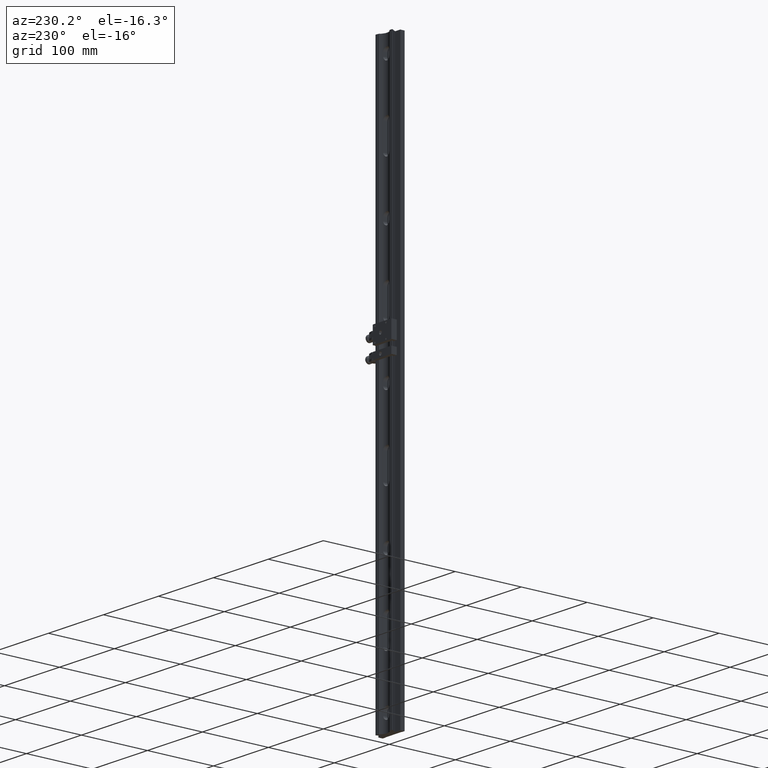
[diagram: clean part render]
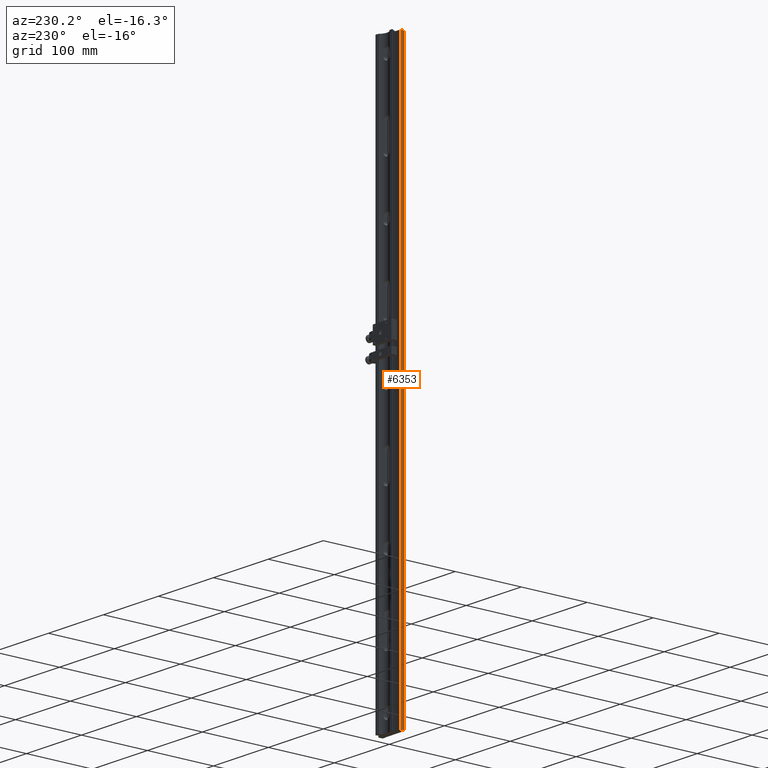
[diagram: same view with one face highlighted and labeled with its STEP entity id]
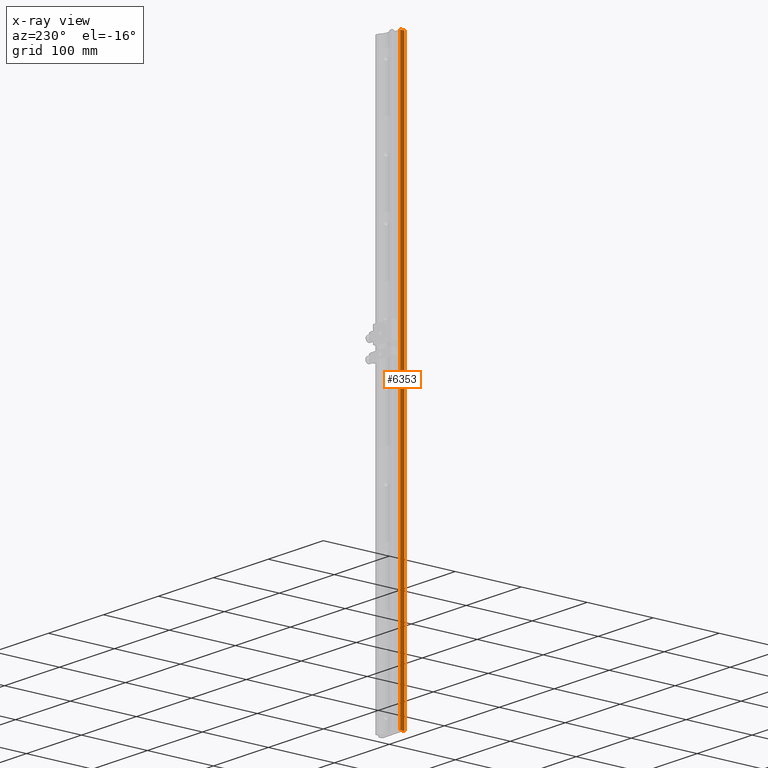
[diagram: x-ray of the same camera — body ghosted, the highlighted face saturated]
A machine part, auxiliary view. The second image highlights one B-rep face of the part: STEP entity #6353.
The next image is the same camera in x-ray: the body ghosted, the highlighted face saturated — about 0% of this face is hidden behind the body in this view.
In plain terms, the highlighted planar face has unit normal (1, 0, 0).
Its self-contained STEP definition (entity closure, byte-faithful):
#33 = CARTESIAN_POINT ( 'NONE',  ( -20.00000000000000000, 425.0000000000000000, 0.000000000000000000 ) ) ;
#38 = DIRECTION ( 'NONE',  ( -5.337610695313253357E-16, 0.000000000000000000, -1.000000000000000000 ) ) ;
#707 = PLANE ( 'NONE',  #6361 ) ;
#731 = EDGE_CURVE ( 'NONE', #1200, #2750, #4626, .T. ) ;
#733 = ORIENTED_EDGE ( 'NONE', *, *, #5914, .T. ) ;
#897 = CARTESIAN_POINT ( 'NONE',  ( -19.99999999999999645, 425.0000000000000000, 6.499999999999999112 ) ) ;
#1200 = VERTEX_POINT ( 'NONE', #3419 ) ;
#1286 = DIRECTION ( 'NONE',  ( -0.000000000000000000, -1.000000000000000000, -0.000000000000000000 ) ) ;
#1386 = EDGE_CURVE ( 'NONE', #1200, #2789, #2930, .T. ) ;
#1908 = LINE ( 'NONE', #897, #3839 ) ;
#2097 = DIRECTION ( 'NONE',  ( 5.337610695313253357E-16, -0.000000000000000000, 1.000000000000000000 ) ) ;
#2278 = DIRECTION ( 'NONE',  ( 5.337610695313253357E-16, -0.000000000000000000, 1.000000000000000000 ) ) ;
#2301 = DIRECTION ( 'NONE',  ( -0.000000000000000000, -1.000000000000000000, -0.000000000000000000 ) ) ;
#2501 = VECTOR ( 'NONE', #2278, 1000.000000000000000 ) ;
#2750 = VERTEX_POINT ( 'NONE', #7813 ) ;
#2789 = VERTEX_POINT ( 'NONE', #2959 ) ;
#2856 = CARTESIAN_POINT ( 'NONE',  ( -19.99999999999999645, -425.0000000000000000, 6.499999999999999112 ) ) ;
#2930 = LINE ( 'NONE', #8294, #2501 ) ;
#2942 = VECTOR ( 'NONE', #1286, 1000.000000000000000 ) ;
#2959 = CARTESIAN_POINT ( 'NONE',  ( -19.99999999999999645, 425.0000000000000000, 6.499999999999999112 ) ) ;
#3178 = ORIENTED_EDGE ( 'NONE', *, *, #731, .T. ) ;
#3330 = CARTESIAN_POINT ( 'NONE',  ( -19.99999999999999645, -425.0000000000000000, 6.499999999999999112 ) ) ;
#3395 = CARTESIAN_POINT ( 'NONE',  ( -19.99999999999999645, 425.0000000000000000, 6.499999999999999112 ) ) ;
#3419 = CARTESIAN_POINT ( 'NONE',  ( -20.00000000000000000, 425.0000000000000000, 0.000000000000000000 ) ) ;
#3809 = VECTOR ( 'NONE', #2097, 1000.000000000000000 ) ;
#3839 = VECTOR ( 'NONE', #2301, 1000.000000000000000 ) ;
#3852 = EDGE_CURVE ( 'NONE', #2789, #7906, #1908, .T. ) ;
#3899 = ORIENTED_EDGE ( 'NONE', *, *, #3852, .F. ) ;
#4626 = LINE ( 'NONE', #33, #2942 ) ;
#4887 = EDGE_LOOP ( 'NONE', ( #733, #3899, #6161, #3178 ) ) ;
#5914 = EDGE_CURVE ( 'NONE', #2750, #7906, #8639, .T. ) ;
#6090 = DIRECTION ( 'NONE',  ( 1.000000000000000000, 0.000000000000000000, -5.337610695313253357E-16 ) ) ;
#6161 = ORIENTED_EDGE ( 'NONE', *, *, #1386, .F. ) ;
#6353 = ADVANCED_FACE ( 'NONE', ( #6736 ), #707, .F. ) ;
#6361 = AXIS2_PLACEMENT_3D ( 'NONE', #3395, #6090, #38 ) ;
#6736 = FACE_OUTER_BOUND ( 'NONE', #4887, .T. ) ;
#7813 = CARTESIAN_POINT ( 'NONE',  ( -20.00000000000000000, -425.0000000000000000, 0.000000000000000000 ) ) ;
#7906 = VERTEX_POINT ( 'NONE', #2856 ) ;
#8294 = CARTESIAN_POINT ( 'NONE',  ( -19.99999999999999645, 425.0000000000000000, 6.499999999999999112 ) ) ;
#8639 = LINE ( 'NONE', #3330, #3809 ) ;